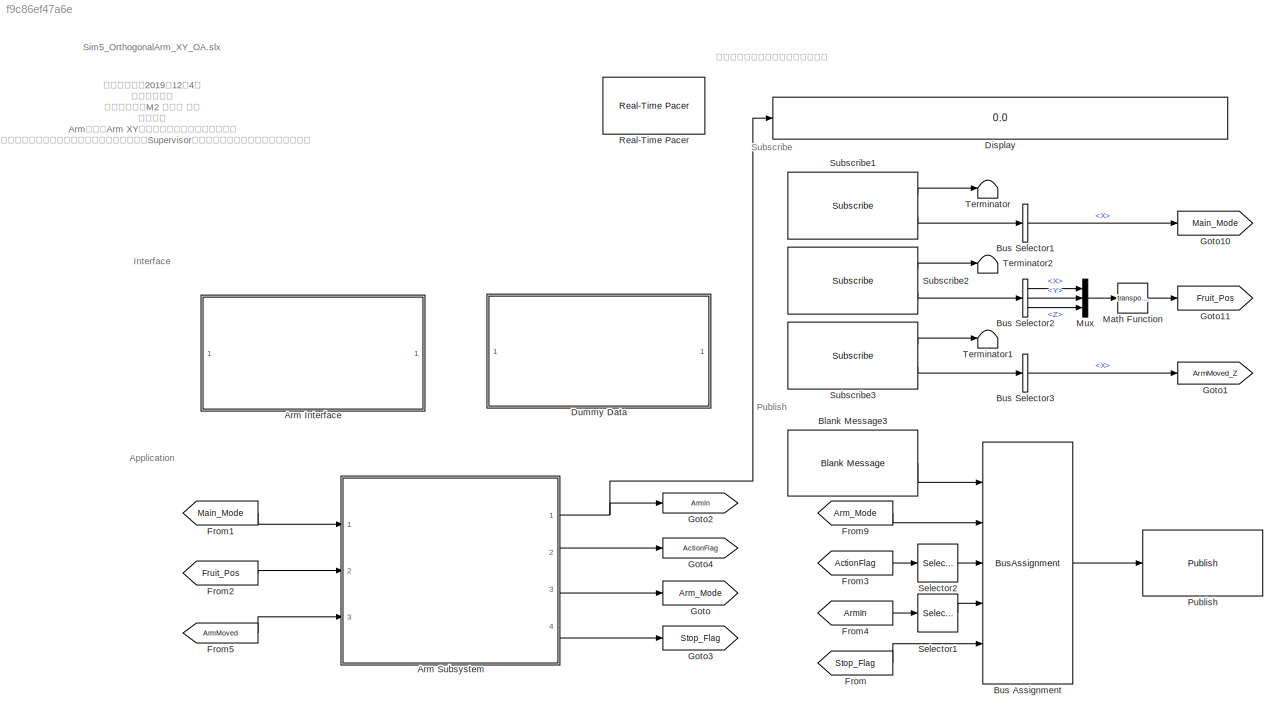
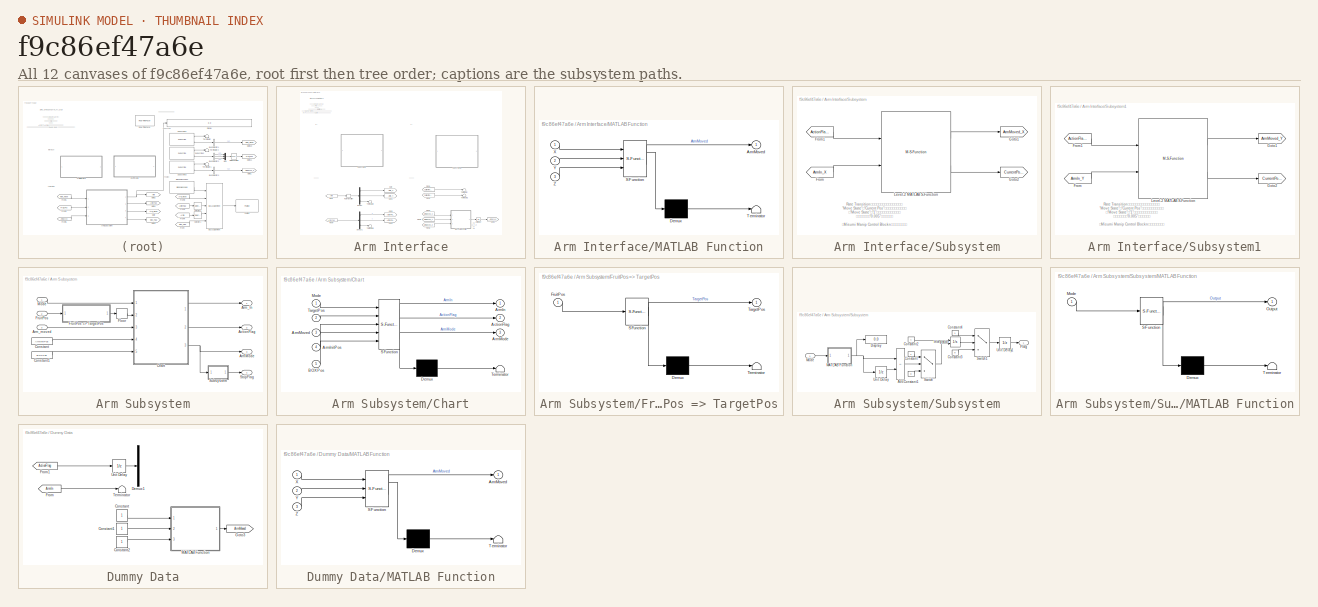
[diagram: thumbnail index - all 12 canvases of the model, root first then tree order]
MODEL slx_f9c86ef47a6e
KIND model
CONFIG AbsTol = auto
CONFIG EnableMultiTasking = off
CONFIG FixedStep = auto
CONFIG InitFcn = Sim5_Status = 0;\nset_param('Sim1_Supervisor_OA','SimulationCommand','update');\nGUI = evalin('base','GUI_handle');
CONFIG MaxStep = auto
CONFIG MinStep = auto
CONFIG RelTol = 1e-3
CONFIG SampleTimeConstraint = Unconstrained
CONFIG SolverName = VariableStepAuto
CONFIG StartTime = 0.0
CONFIG StopFcn = Sim5_Status = 1;\nset_param('Sim1_Supervisor_OA','SimulationCommand','update');\nrun('AutomoveData.m')
CONFIG StopTime = Inf
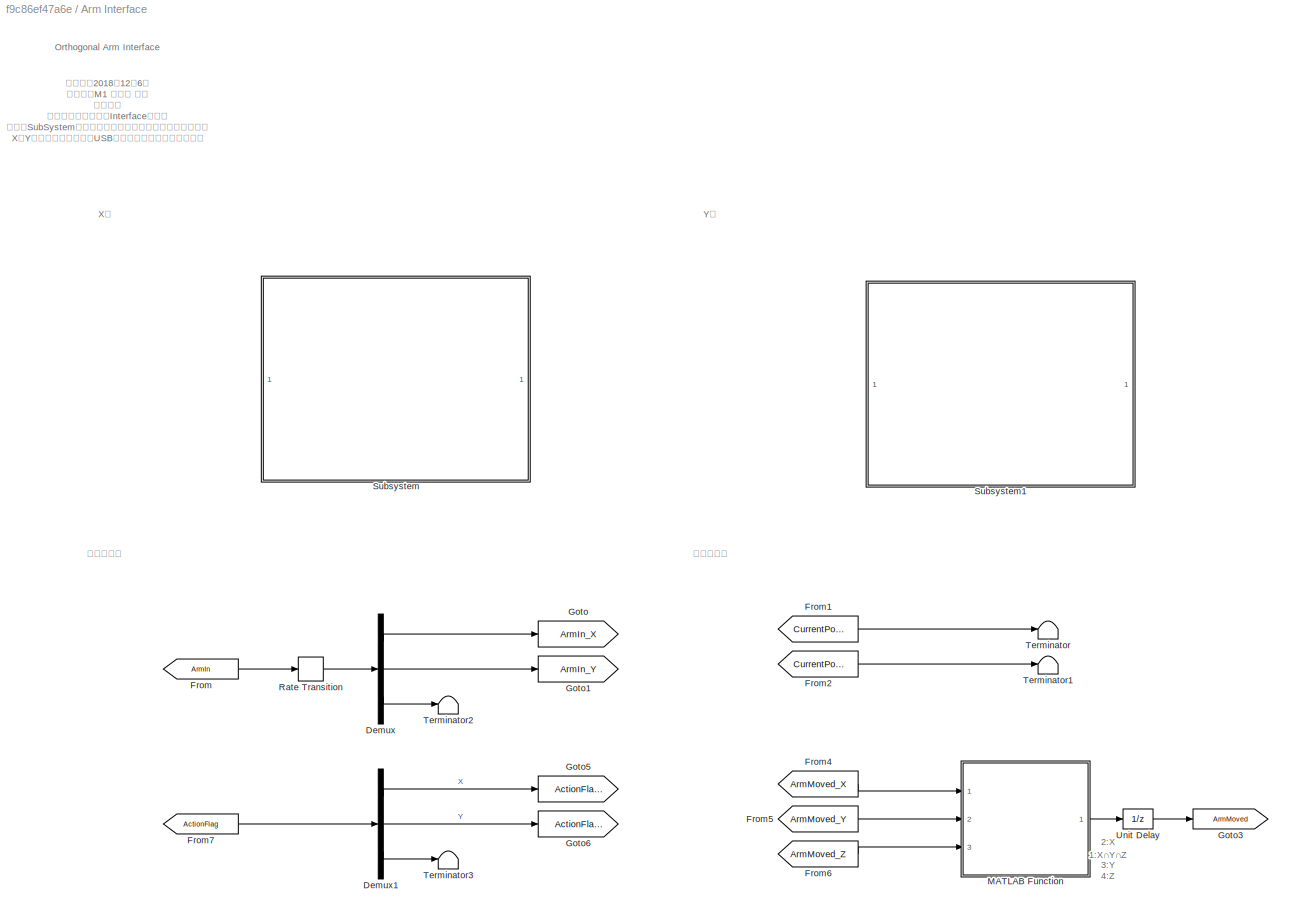
BLOCK [SubSystem] Arm Interface
  Ports = []
  RequestExecContextInheritance = off
BLOCK [Demux] Arm Interface/Demux
  Outputs = 3
  Ports = [1, 3]
BLOCK [Demux] Arm Interface/Demux1
  Outputs = 3
  Ports = [1, 3]
BLOCK [From] Arm Interface/From
  GotoTag = ArmIn
  TagVisibility = global
BLOCK [From] Arm Interface/From1
  GotoTag = CurrentPos_X
  TagVisibility = global
BLOCK [From] Arm Interface/From2
  GotoTag = CurrentPos_Y
  TagVisibility = global
BLOCK [From] Arm Interface/From4
  GotoTag = ArmMoved_X
  TagVisibility = global
BLOCK [From] Arm Interface/From5
  GotoTag = ArmMoved_Y
  TagVisibility = global
BLOCK [From] Arm Interface/From6
  GotoTag = ArmMoved_Z
  TagVisibility = global
BLOCK [From] Arm Interface/From7
  GotoTag = ActionFlag
  TagVisibility = global
BLOCK [Goto] Arm Interface/Goto
  GotoTag = ArmIn_X
  TagVisibility = global
BLOCK [Goto] Arm Interface/Goto1
  GotoTag = ArmIn_Y
  TagVisibility = global
BLOCK [Goto] Arm Interface/Goto3
  GotoTag = ArmMoved
  TagVisibility = global
BLOCK [Goto] Arm Interface/Goto5
  GotoTag = ActionFlag_X
  TagVisibility = global
BLOCK [Goto] Arm Interface/Goto6
  GotoTag = ActionFlag_Y
  TagVisibility = global
BLOCK [SubSystem] Arm Interface/MATLAB Function
  ErrorFcn = Stateflow.Translate.translate
  PermitHierarchicalResolution = ExplicitOnly
  Ports = [3, 1]
  RequestExecContextInheritance = off
  SFBlockType = MATLAB Function
  TreatAsAtomicUnit = on
BLOCK [Demux] Arm Interface/MATLAB Function/ Demux 
  Outputs = 1
  Ports = [1, 1]
BLOCK [S-Function] Arm Interface/MATLAB Function/ SFunction 
  EnableBusSupport = on
  FunctionName = sf_sfun
  PortCounts = [3 2]
  Ports = [3, 2]
  SFcnIsStateOwnerBlock = off
  SFunctionDeploymentMode = off
  Tag = Stateflow S-Function 1
BLOCK [Terminator] Arm Interface/MATLAB Function/ Terminator 
BLOCK [Outport] Arm Interface/MATLAB Function/ArmMoved
  VectorParamsAs1DForOutWhenUnconnected = off
BLOCK [Inport] Arm Interface/MATLAB Function/X
BLOCK [Inport] Arm Interface/MATLAB Function/Y
  Port = 2
BLOCK [Inport] Arm Interface/MATLAB Function/Z
  Port = 3
BLOCK [RateTransition] Arm Interface/Rate Transition
  OutPortSampleTime = 0.1
BLOCK [SubSystem] Arm Interface/Subsystem
  Ports = []
  RequestExecContextInheritance = off
BLOCK [From] Arm Interface/Subsystem/From
  GotoTag = ArmIn_X
  TagVisibility = global
BLOCK [From] Arm Interface/Subsystem/From1
  GotoTag = ActionFlag_X
  TagVisibility = global
BLOCK [Goto] Arm Interface/Subsystem/Goto1
  GotoTag = ArmMoved_X
  TagVisibility = global
BLOCK [Goto] Arm Interface/Subsystem/Goto2
  GotoTag = CurrentPos_X
  TagVisibility = global
BLOCK [M-S-Function] Arm Interface/Subsystem/Level-2 MATLAB S-Function
  FunctionName = l2_misumi_RSManip_ver4
  Parameters = comport, initPos, speed
  Ports = [2, 2]
BLOCK [SubSystem] Arm Interface/Subsystem1
  Ports = []
  RequestExecContextInheritance = off
BLOCK [From] Arm Interface/Subsystem1/From
  GotoTag = ArmIn_Y
  TagVisibility = global
BLOCK [From] Arm Interface/Subsystem1/From1
  GotoTag = ActionFlag_Y
  TagVisibility = global
BLOCK [Goto] Arm Interface/Subsystem1/Goto1
  GotoTag = ArmMoved_Y
  TagVisibility = global
BLOCK [Goto] Arm Interface/Subsystem1/Goto2
  GotoTag = CurrentPos_Y
  TagVisibility = global
BLOCK [M-S-Function] Arm Interface/Subsystem1/Level-2 MATLAB S-Function
  FunctionName = l2_misumi_RSManip_ver4
  Parameters = comport, initPos, speed
  Ports = [2, 2]
BLOCK [Terminator] Arm Interface/Terminator
BLOCK [Terminator] Arm Interface/Terminator1
BLOCK [Terminator] Arm Interface/Terminator2
BLOCK [Terminator] Arm Interface/Terminator3
BLOCK [UnitDelay] Arm Interface/Unit Delay
  HasFrameUpgradeWarning = on
  SampleTime = -1
BLOCK [SubSystem] Arm Subsystem
  Ports = [3, 4]
  RequestExecContextInheritance = off
  TreatAsAtomicUnit = on
BLOCK [Outport] Arm Subsystem/ActionFlag
  Port = 2
  VectorParamsAs1DForOutWhenUnconnected = off
BLOCK [Outport] Arm Subsystem/ArmMode
  InitialOutput = 0
  Port = 3
  PortDimensions = 1
  VectorParamsAs1DForOutWhenUnconnected = off
BLOCK [Outport] Arm Subsystem/Arm_In
  InitialOutput = armInitPos
  VectorParamsAs1DForOutWhenUnconnected = off
BLOCK [Inport] Arm Subsystem/Arm_moved
  Port = 3
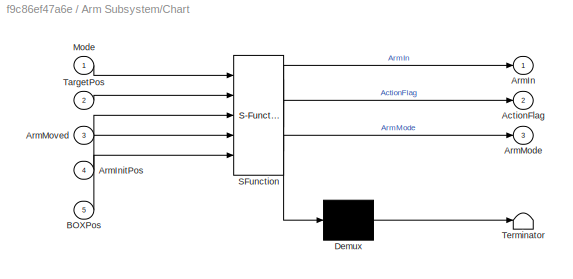
BLOCK [SubSystem] Arm Subsystem/Chart
  ErrorFcn = Stateflow.Translate.translate
  PermitHierarchicalResolution = ExplicitOnly
  Ports = [5, 3]
  RequestExecContextInheritance = off
  SFBlockType = Chart
  TreatAsAtomicUnit = on
BLOCK [Demux] Arm Subsystem/Chart/ Demux 
  Outputs = 1
  Ports = [1, 1]
BLOCK [S-Function] Arm Subsystem/Chart/ SFunction 
  EnableBusSupport = on
  FunctionName = sf_sfun
  PortCounts = [5 4]
  Ports = [5, 4]
  SFcnIsStateOwnerBlock = off
  SFunctionDeploymentMode = off
  Tag = Stateflow S-Function 15
BLOCK [Terminator] Arm Subsystem/Chart/ Terminator 
BLOCK [Outport] Arm Subsystem/Chart/ActionFlag
  Port = 2
  VectorParamsAs1DForOutWhenUnconnected = off
BLOCK [Outport] Arm Subsystem/Chart/ArmIn
  VectorParamsAs1DForOutWhenUnconnected = off
BLOCK [Inport] Arm Subsystem/Chart/ArmInitPos
  Port = 4
BLOCK [Outport] Arm Subsystem/Chart/ArmMode
  Port = 3
  VectorParamsAs1DForOutWhenUnconnected = off
BLOCK [Inport] Arm Subsystem/Chart/ArmMoved
  Port = 3
BLOCK [Inport] Arm Subsystem/Chart/BOXPos
  Port = 5
BLOCK [Inport] Arm Subsystem/Chart/Mode
BLOCK [Inport] Arm Subsystem/Chart/TargetPos
  Port = 2
BLOCK [Constant] Arm Subsystem/Constant
  Value = ArmInitPos
  VectorParams1D = off
BLOCK [Constant] Arm Subsystem/Constant1
  Value = BOXPos
  VectorParams1D = off
BLOCK [Rounding] Arm Subsystem/Floor
BLOCK [Inport] Arm Subsystem/FruitPos
  Port = 2
BLOCK [SubSystem] Arm Subsystem/FruitPos => TargetPos
  ErrorFcn = Stateflow.Translate.translate
  PermitHierarchicalResolution = ExplicitOnly
  Ports = [1, 1]
  RequestExecContextInheritance = off
  SFBlockType = MATLAB Function
  TreatAsAtomicUnit = on
BLOCK [Demux] Arm Subsystem/FruitPos => TargetPos/ Demux 
  Outputs = 1
  Ports = [1, 1]
BLOCK [S-Function] Arm Subsystem/FruitPos => TargetPos/ SFunction 
  EnableBusSupport = on
  FunctionName = sf_sfun
  PortCounts = [1 2]
  Ports = [1, 2]
  SFcnIsStateOwnerBlock = off
  SFunctionDeploymentMode = off
  Tag = Stateflow S-Function 2
BLOCK [Terminator] Arm Subsystem/FruitPos => TargetPos/ Terminator 
BLOCK [Inport] Arm Subsystem/FruitPos => TargetPos/FruitPos
BLOCK [Outport] Arm Subsystem/FruitPos => TargetPos/TargetPos
  VectorParamsAs1DForOutWhenUnconnected = off
BLOCK [Inport] Arm Subsystem/Mode
  PortDimensions = 1
BLOCK [Outport] Arm Subsystem/StopFlag
  InitialOutput = 0
  Port = 4
  PortDimensions = 1
  VectorParamsAs1DForOutWhenUnconnected = off
BLOCK [SubSystem] Arm Subsystem/Subsystem
  Ports = [1, 1]
  RequestExecContextInheritance = off
BLOCK [Sum] Arm Subsystem/Subsystem/Add
  IconShape = rectangular
  Inputs = +-
  Ports = [2, 1]
BLOCK [Constant] Arm Subsystem/Subsystem/Constant
BLOCK [Constant] Arm Subsystem/Subsystem/Constant1
  Value = 0
BLOCK [Constant] Arm Subsystem/Subsystem/Constant2
BLOCK [Constant] Arm Subsystem/Subsystem/Constant3
  Value = 0
BLOCK [Constant] Arm Subsystem/Subsystem/Constant4
BLOCK [Display] Arm Subsystem/Subsystem/Display
  Decimation = 1
  Ports = [1]
BLOCK [Outport] Arm Subsystem/Subsystem/Flag
  VectorParamsAs1DForOutWhenUnconnected = off
BLOCK [Integrator] Arm Subsystem/Subsystem/Integrator
  ExternalReset = level
  Ports = [2, 1]
BLOCK [SubSystem] Arm Subsystem/Subsystem/MATLAB Function
  ErrorFcn = Stateflow.Translate.translate
  PermitHierarchicalResolution = ExplicitOnly
  Ports = [1, 1]
  RequestExecContextInheritance = off
  SFBlockType = MATLAB Function
  TreatAsAtomicUnit = on
BLOCK [Demux] Arm Subsystem/Subsystem/MATLAB Function/ Demux 
  Outputs = 1
  Ports = [1, 1]
BLOCK [S-Function] Arm Subsystem/Subsystem/MATLAB Function/ SFunction 
  EnableBusSupport = on
  FunctionName = sf_sfun
  PortCounts = [1 2]
  Ports = [1, 2]
  SFcnIsStateOwnerBlock = off
  SFunctionDeploymentMode = off
  Tag = Stateflow S-Function 4
BLOCK [Terminator] Arm Subsystem/Subsystem/MATLAB Function/ Terminator 
BLOCK [Inport] Arm Subsystem/Subsystem/MATLAB Function/Mode
BLOCK [Outport] Arm Subsystem/Subsystem/MATLAB Function/Output
  VectorParamsAs1DForOutWhenUnconnected = off
BLOCK [Inport] Arm Subsystem/Subsystem/Mode
BLOCK [Switch] Arm Subsystem/Subsystem/Switch
  Criteria = u2 ~= 0
  InputSameDT = off
  SaturateOnIntegerOverflow = off
BLOCK [Switch] Arm Subsystem/Subsystem/Switch1
  Criteria = u2 > Threshold
  InputSameDT = off
  SaturateOnIntegerOverflow = off
  Threshold = 5
BLOCK [UnitDelay] Arm Subsystem/Subsystem/Unit Delay
  HasFrameUpgradeWarning = on
  SampleTime = -1
BLOCK [UnitDelay] Arm Subsystem/Subsystem/Unit Delay1
  HasFrameUpgradeWarning = on
  SampleTime = -1
BLOCK [Reference] Blank Message3  REF=robotlib/Blank Message
  Ports = [0, 1]
  SourceBlock = robotlib/Blank Message
  SourceProductBaseCode = RR
  SourceType = ROS Blank Message
BLOCK [BusAssignment] Bus Assignment
  AssignedSignals = Twist.Linear.X,Twist.Linear.Y,Twist.Linear.Z,Twist.Angular.X
  Ports = [5, 1]
BLOCK [BusSelector] Bus Selector1
  OutputSignals = Twist.Linear.X
  Ports = [1, 1]
BLOCK [BusSelector] Bus Selector2
  OutputSignals = Twist.Linear.X,Twist.Linear.Y,Twist.Linear.Z
  Ports = [1, 3]
BLOCK [BusSelector] Bus Selector3
  OutputSignals = Twist.Linear.X
  Ports = [1, 1]
BLOCK [Display] Display
  Commented = on
  Decimation = 1
  Ports = [1]
BLOCK [SubSystem] Dummy Data
  Commented = on
  Ports = []
  RequestExecContextInheritance = off
BLOCK [Constant] Dummy Data/Constant
BLOCK [Constant] Dummy Data/Constant1
BLOCK [Constant] Dummy Data/Constant2
BLOCK [Demux] Dummy Data/Demux1
  Commented = on
  Outputs = 3
  Ports = [1, 3]
BLOCK [From] Dummy Data/From
  Commented = on
  GotoTag = ArmIn
  TagVisibility = global
BLOCK [From] Dummy Data/From1
  Commented = on
  GotoTag = ActionFlag
  TagVisibility = global
BLOCK [Goto] Dummy Data/Goto3
  GotoTag = ArmMoved
  TagVisibility = global
BLOCK [SubSystem] Dummy Data/MATLAB Function
  ErrorFcn = Stateflow.Translate.translate
  PermitHierarchicalResolution = ExplicitOnly
  Ports = [3, 1]
  RequestExecContextInheritance = off
  SFBlockType = MATLAB Function
  TreatAsAtomicUnit = on
BLOCK [Demux] Dummy Data/MATLAB Function/ Demux 
  Outputs = 1
  Ports = [1, 1]
BLOCK [S-Function] Dummy Data/MATLAB Function/ SFunction 
  EnableBusSupport = on
  FunctionName = sf_sfun
  PortCounts = [3 2]
  Ports = [3, 2]
  SFcnIsStateOwnerBlock = off
  SFunctionDeploymentMode = off
  Tag = Stateflow S-Function 3
BLOCK [Terminator] Dummy Data/MATLAB Function/ Terminator 
BLOCK [Outport] Dummy Data/MATLAB Function/ArmMoved
  VectorParamsAs1DForOutWhenUnconnected = off
BLOCK [Inport] Dummy Data/MATLAB Function/X
BLOCK [Inport] Dummy Data/MATLAB Function/Y
  Port = 2
BLOCK [Inport] Dummy Data/MATLAB Function/Z
  Port = 3
BLOCK [Terminator] Dummy Data/Terminator
  Commented = on
BLOCK [UnitDelay] Dummy Data/Unit Delay
  Commented = on
  HasFrameUpgradeWarning = on
  SampleTime = -1
BLOCK [From] From
  GotoTag = Stop_Flag
  TagVisibility = global
BLOCK [From] From1
  GotoTag = Main_Mode
  TagVisibility = global
BLOCK [From] From2
  GotoTag = Fruit_Pos
  TagVisibility = global
BLOCK [From] From3
  GotoTag = ActionFlag
  TagVisibility = global
BLOCK [From] From4
  GotoTag = ArmIn
  TagVisibility = global
BLOCK [From] From5
  GotoTag = ArmMoved
  TagVisibility = global
BLOCK [From] From9
  GotoTag = Arm_Mode
  TagVisibility = global
BLOCK [Goto] Goto
  GotoTag = Arm_Mode
  TagVisibility = global
BLOCK [Goto] Goto1
  GotoTag = ArmMoved_Z
  TagVisibility = global
BLOCK [Goto] Goto10
  GotoTag = Main_Mode
  TagVisibility = global
BLOCK [Goto] Goto11
  GotoTag = Fruit_Pos
  TagVisibility = global
BLOCK [Goto] Goto2
  GotoTag = ArmIn
  TagVisibility = global
BLOCK [Goto] Goto3
  GotoTag = Stop_Flag
  TagVisibility = global
BLOCK [Goto] Goto4
  GotoTag = ActionFlag
  TagVisibility = global
BLOCK [Math] Math Function
  Operator = transpose
  Ports = [1, 1]
  SignedPower = on
BLOCK [Mux] Mux
  DisplayOption = bar
  Inputs = 3
  Ports = [3, 1]
BLOCK [Reference] Publish  REF=robotlib/Publish
  Ports = [1]
  SourceBlock = robotlib/Publish
  SourceProductBaseCode = RR
  SourceType = ROS Publish
BLOCK [Reference] Real-Time Pacer  REF=realtime_pacer_lib/Real-Time Pacer
  Ports = []
  SourceBlock = realtime_pacer_lib/Real-Time Pacer
  SourceProductName = Real-Time Pacer
  SourceType = RealTime_Pacer
BLOCK [Selector] Selector1
  IndexOptions = Index vector (dialog)
  Indices = 3
  InputPortWidth = 3
  OutputSizes = 1
  Ports = [1, 1]
BLOCK [Selector] Selector2
  IndexOptions = Index vector (dialog)
  Indices = 3
  InputPortWidth = 3
  OutputSizes = 1
  Ports = [1, 1]
BLOCK [Reference] Subscribe1  REF=robotlib/Subscribe
  Ports = [0, 2]
  SourceBlock = robotlib/Subscribe
  SourceProductBaseCode = RR
  SourceType = ROS Subscribe
BLOCK [Reference] Subscribe2  REF=robotlib/Subscribe
  Ports = [0, 2]
  SourceBlock = robotlib/Subscribe
  SourceProductBaseCode = RR
  SourceType = ROS Subscribe
BLOCK [Reference] Subscribe3  REF=robotlib/Subscribe
  Ports = [0, 2]
  SourceBlock = robotlib/Subscribe
  SourceProductBaseCode = RR
  SourceType = ROS Subscribe
BLOCK [Terminator] Terminator
BLOCK [Terminator] Terminator1
BLOCK [Terminator] Terminator2
ANNOTATION (root): 初回作成日：2019年12月4日 最終更新日： 最終更新者：M2 奈須野 智弘 注意点： Arm（直交Arm XY軸）の制御を行うモデルです． 実働時にはクライアントとして立ち上がるため，Supervisorと同じワークスペースを適用します． Setting Parameter： ArmInitPos, BOXPos
ANNOTATION (root): ※直交アーム用のプログラムです！
ANNOTATION (root): Application
ANNOTATION (root): Interface
ANNOTATION (root): Publish
ANNOTATION (root): Sim5_OrthogonalArm_XY_OA.slx
ANNOTATION (root): Subscribe
ANNOTATION Arm Interface: 1:X∩Y∩Z 2:X 3:Y 4:Z
ANNOTATION Arm Interface: 作成日：2018年12月6日 作成者：M1 奈須野 智弘 注意点： 直交アーム動作用のInterfaceです． 各軸でSubSystemを組み上げ，動作するようにしています． X，Y軸はコントローラをUSBで接続する必要があります．
ANNOTATION Arm Interface: Orthogonal Arm Interface
ANNOTATION Arm Interface: X軸
ANNOTATION Arm Interface: Y軸
ANNOTATION Arm Interface: 入力データ
ANNOTATION Arm Interface: 出力データ
ANNOTATION Arm Interface/Subsystem: Rate Transitionブロックのサンプル時間に応じて、 "Move State"、"Current Pos"の応答速度が変化する。 （"Move State"が"1"で目標位置に移動完了。） サンプル時間を"0.005"にしている。 ※Misumi Manip Control Blocknのサンプル時間は 入力の時間に依存する。
ANNOTATION Arm Interface/Subsystem1: Rate Transitionブロックのサンプル時間に応じて、 "Move State"、"Current Pos"の応答速度が変化する。 （"Move State"が"1"で目標位置に移動完了。） サンプル時間を"0.005"にしている。 ※Misumi Manip Control Blocknのサンプル時間は 入力の時間に依存する。
LINE Arm Interface/Demux1:1 -> Arm Interface/Goto5:1
LINE Arm Interface/Demux1:2 -> Arm Interface/Goto6:1
LINE Arm Interface/Demux1:3 -> Arm Interface/Terminator3:1
LINE Arm Interface/Demux:1 -> Arm Interface/Goto:1
LINE Arm Interface/Demux:2 -> Arm Interface/Goto1:1
LINE Arm Interface/Demux:3 -> Arm Interface/Terminator2:1
LINE Arm Interface/From1:1 -> Arm Interface/Terminator:1
LINE Arm Interface/From2:1 -> Arm Interface/Terminator1:1
LINE Arm Interface/From4:1 -> Arm Interface/MATLAB Function:1
LINE Arm Interface/From5:1 -> Arm Interface/MATLAB Function:2
LINE Arm Interface/From6:1 -> Arm Interface/MATLAB Function:3
LINE Arm Interface/From7:1 -> Arm Interface/Demux1:1
LINE Arm Interface/From:1 -> Arm Interface/Rate Transition:1
LINE Arm Interface/MATLAB Function:1 -> Arm Interface/Unit Delay:1
LINE Arm Interface/Rate Transition:1 -> Arm Interface/Demux:1
LINE Arm Interface/Subsystem/From1:1 -> Arm Interface/Subsystem/Level-2 MATLAB S-Function:1
LINE Arm Interface/Subsystem/From:1 -> Arm Interface/Subsystem/Level-2 MATLAB S-Function:2
LINE Arm Interface/Subsystem/Level-2 MATLAB S-Function:1 -> Arm Interface/Subsystem/Goto1:1
LINE Arm Interface/Subsystem/Level-2 MATLAB S-Function:2 -> Arm Interface/Subsystem/Goto2:1
LINE Arm Interface/Subsystem1/From1:1 -> Arm Interface/Subsystem1/Level-2 MATLAB S-Function:1
LINE Arm Interface/Subsystem1/From:1 -> Arm Interface/Subsystem1/Level-2 MATLAB S-Function:2
LINE Arm Interface/Subsystem1/Level-2 MATLAB S-Function:1 -> Arm Interface/Subsystem1/Goto1:1
LINE Arm Interface/Subsystem1/Level-2 MATLAB S-Function:2 -> Arm Interface/Subsystem1/Goto2:1
LINE Arm Interface/Unit Delay:1 -> Arm Interface/Goto3:1
LINE Arm Subsystem/Arm_moved:1 -> Arm Subsystem/Chart:3
LINE Arm Subsystem/Chart:1 -> Arm Subsystem/Arm_In:1
LINE Arm Subsystem/Chart:2 -> Arm Subsystem/ActionFlag:1
NET Arm Subsystem/Chart:3 -> Arm Subsystem/ArmMode:1, Arm Subsystem/Subsystem:1
LINE Arm Subsystem/Constant1:1 -> Arm Subsystem/Chart:5
LINE Arm Subsystem/Constant:1 -> Arm Subsystem/Chart:4
LINE Arm Subsystem/Floor:1 -> Arm Subsystem/Chart:2
LINE Arm Subsystem/FruitPos => TargetPos:1 -> Arm Subsystem/Floor:1
LINE Arm Subsystem/FruitPos:1 -> Arm Subsystem/FruitPos => TargetPos:1
LINE Arm Subsystem/Mode:1 -> Arm Subsystem/Chart:1
LINE Arm Subsystem/Subsystem/Add:1 -> Arm Subsystem/Subsystem/Switch:2
LINE Arm Subsystem/Subsystem/Constant1:1 -> Arm Subsystem/Subsystem/Switch:3
LINE Arm Subsystem/Subsystem/Constant2:1 -> Arm Subsystem/Subsystem/Integrator:1
LINE Arm Subsystem/Subsystem/Constant3:1 -> Arm Subsystem/Subsystem/Switch1:3
LINE Arm Subsystem/Subsystem/Constant4:1 -> Arm Subsystem/Subsystem/Switch1:1
LINE Arm Subsystem/Subsystem/Constant:1 -> Arm Subsystem/Subsystem/Switch:1
LINE Arm Subsystem/Subsystem/Integrator:1 -> Arm Subsystem/Subsystem/Switch1:2
NET Arm Subsystem/Subsystem/MATLAB Function:1 -> Arm Subsystem/Subsystem/Add:1, Arm Subsystem/Subsystem/Display:1, Arm Subsystem/Subsystem/Unit Delay:1
LINE Arm Subsystem/Subsystem/Mode:1 -> Arm Subsystem/Subsystem/MATLAB Function:1
LINE Arm Subsystem/Subsystem/Switch1:1 -> Arm Subsystem/Subsystem/Unit Delay1:1
LINE Arm Subsystem/Subsystem/Switch:1 -> Arm Subsystem/Subsystem/Integrator:2
LINE Arm Subsystem/Subsystem/Unit Delay1:1 -> Arm Subsystem/Subsystem/Flag:1
LINE Arm Subsystem/Subsystem/Unit Delay:1 -> Arm Subsystem/Subsystem/Add:2
LINE Arm Subsystem/Subsystem:1 -> Arm Subsystem/StopFlag:1
NET Arm Subsystem:1 -> Display:1, Goto2:1
LINE Arm Subsystem:2 -> Goto4:1
LINE Arm Subsystem:3 -> Goto:1
LINE Arm Subsystem:4 -> Goto3:1
LINE Blank Message3:1 -> Bus Assignment:1
LINE Bus Assignment:1 -> Publish:1
LINE Bus Selector1:1 -> Goto10:1
LINE Bus Selector2:1 -> Mux:1
LINE Bus Selector2:2 -> Mux:2
LINE Bus Selector2:3 -> Mux:3
LINE Bus Selector3:1 -> Goto1:1
LINE Dummy Data/Constant1:1 -> Dummy Data/MATLAB Function:2
LINE Dummy Data/Constant2:1 -> Dummy Data/MATLAB Function:3
LINE Dummy Data/Constant:1 -> Dummy Data/MATLAB Function:1
LINE Dummy Data/From1:1 -> Dummy Data/Unit Delay:1
LINE Dummy Data/From:1 -> Dummy Data/Terminator:1
LINE Dummy Data/MATLAB Function:1 -> Dummy Data/Goto3:1
LINE Dummy Data/Unit Delay:1 -> Dummy Data/Demux1:1
LINE From1:1 -> Arm Subsystem:1
LINE From2:1 -> Arm Subsystem:2
LINE From3:1 -> Selector2:1
LINE From4:1 -> Selector1:1
LINE From5:1 -> Arm Subsystem:3
LINE From9:1 -> Bus Assignment:2
LINE From:1 -> Bus Assignment:5
LINE Math Function:1 -> Goto11:1
LINE Mux:1 -> Math Function:1
LINE Selector1:1 -> Bus Assignment:4
LINE Selector2:1 -> Bus Assignment:3
LINE Subscribe1:1 -> Terminator:1
LINE Subscribe1:2 -> Bus Selector1:1
LINE Subscribe2:1 -> Terminator2:1
LINE Subscribe2:2 -> Bus Selector2:1
LINE Subscribe3:1 -> Terminator1:1
LINE Subscribe3:2 -> Bus Selector3:1
note: NET lines group one-source signal fan-out (src -> all destinations, sorted); 1:1 wires keep LINE
CHART Arm Interface/MATLAB Function states=1 transitions=1
  STATE_LABEL 'eML_blk_kernel()'
  STATE_LABEL 'SCRIPT:\nfunction ArmMoved = fcn(X,Y,Z)\n\n\n\nif X == 1 && Y == 1 && Z == 1\n    ArmMoved_XYZ = 1;\nelse\n    ArmMoved_XYZ = 0;\nend\n\nArmMoved = [ArmMoved_XYZ, X, Y, Z];'
CHART Arm Subsystem/FruitPos => TargetPos states=1 transitions=1
  STATE_LABEL 'eML_blk_kernel()'
  STATE_LABEL 'SCRIPT:\nfunction TargetPos = fcn(FruitPos)\n\nTargetPos = FruitPos;\n\nif FruitPos(1) > 200\n    TargetPos(1) = 0;\nelseif FruitPos(1) < 0\n    TargetPos(1) = 200;\nelse\n    TargetPos(1) = 200 - FruitPos(1);\nend\nif FruitPos(2) > 200\n    TargetPos(2) = 200;\nelseif FruitPos(2) < 0\n    TargetPos(2) = 0;\nend\nif FruitPos(3) > 470\n    TargetPos(3) = 470;\nelseif FruitPos(3) < 60\n    TargetPos(3) = 60;\nend\n    \n ...<+9ch>'
CHART Dummy Data/MATLAB Function states=1 transitions=1
  STATE_LABEL 'eML_blk_kernel()'
  STATE_LABEL 'SCRIPT:\nfunction ArmMoved = fcn(X,Y,Z)\n\n\n\nif X == 1 && Y == 1 && Z == 1\n    ArmMoved_XYZ = 1;\nelse\n    ArmMoved_XYZ = 0;\nend\n\nArmMoved = [ArmMoved_XYZ, X, Y, Z];'
CHART Arm Subsystem/Subsystem/MATLAB Function states=1 transitions=1
  STATE_LABEL 'eML_blk_kernel()'
  STATE_LABEL 'SCRIPT:\nfunction Output = fcn(Mode)\n\nif Mode == 1 || Mode == 4 || Mode == 11 || Mode == 12 || Mode == 21 || Mode == 22 ...\n        || Mode == 41 || Mode == 42\n    Output = Mode;\nelse\n    Output = randi(100);\nend'
CHART Arm Subsystem/Chart states=20 transitions=22
  STATE_LABEL 'Mode0_Z2/\n% Move Init. Pos. Z\nentry:\nActionFlag = [0, 0, 1];\nArmIn = ArmInitPos;'
  STATE_LABEL 'Wait01/\n% Wait for input\nentry:\nArmMode = 100;\nActionFlag = [0,0,0];'
  STATE_LABEL 'Arm_Move/'
  STATE_LABEL 'Return_InitPositionX/\n% x座標アームを原点移動\nentry:\nArmMode = 21;'
  STATE_LABEL 'Mode0_X/\n% Move Init. Pos. X\nentry:\nArmMode = 21;\nActionFlag = [1,0,0];\nArmIn = ArmInitPos;'
  STATE_LABEL 'Finished_X/\nentry:\nArmMode = 22;\nActionFlag = [0,0,0];'
  STATE_LABEL 'after(0.5,sec)[ArmMoved(2) == 1]'
  STATE_LABEL 'Arm_MoveTarget1/\n%TargetPosの座標にアーム移動\nentry:\nArmMode = 1;\nNeedTime = abs(ArmInitPos(3)-TargetPos(3))/100;'
  STATE_LABEL 'Mode1/\n% Move Y\nentry:\nArmMode = 1;\nActionFlag = [0,1,0];\nArmIn = TargetPos;'
  STATE_LABEL 'Mode2/\n% Move Z\nentry:\nArmMode = 2;\nActionFlag = [0,0,1];\nArmIn = TargetPos;'
  STATE_LABEL 'Finished_Z/\nentry:ArmMode = 3;\nActionFlag = [0,0,0];'
  STATE_LABEL 'Mode3/\n% Move X\nentry:\nArmMode = 4;\nActionFlag = [1,0,0];\nArmIn = TargetPos;'
  STATE_LABEL 'after(0.5,sec)[ArmMoved(3) == 1]'
  STATE_LABEL 'after(5,sec)'
  STATE_LABEL '[Mode == 42]'
  STATE_LABEL 'Return_InitPositionZY/\n% z,y座標アームを原点移動\nentry:\nArmMode = 31;\nNeedTime = abs(ArmInitPos(3)-TargetPos(3))/100;'
  STATE_LABEL 'Mode0_Z/\n% Move Init. Pos. Z\nentry:\nArmMode = 31;\nActionFlag = [0,0,1];\nArmIn = ArmInitPos;'
  STATE_LABEL 'Mode0_Y/\n% Move Init. Pos. Y\nentry:\nArmMode = 32;\nActionFlag = [0,1,0]\nArmIn = ArmInitPos;'
  STATE_LABEL 'Finished_X/\nentry:\nArmMode = 33;\nActionFlag = [0,0,0];'
  STATE_LABEL 'after(5,sec)'
  STATE_LABEL 'after(2,sec)[ArmMoved(3) == 1]'
  STATE_LABEL 'Wait5/\n% Wait\nentry:\nArmMode = 10;\nActionFlag = [0,0,0];'
  STATE_LABEL '[Mode == 51 || Mode == 47]'
  STATE_LABEL '[Mode == 62 || Mode == 52]'
  STATE_LABEL 'after(0.5,sec)[ArmMoved(2) == 1]'
  STATE_LABEL 'Return_InitPositionX/\n% x座標アームを原点移動\nentry:\nArmMode = 21;'
  STATE_LABEL 'Mode0_X/\n% Move Init. Pos. X\nentry:\nArmMode = 21;\nActionFlag = [1,0,0];\nArmIn = ArmInitPos;'
  STATE_LABEL 'Finished_X/\nentry:\nArmMode = 22;\nActionFlag = [0,0,0];'
  STATE_LABEL 'after(0.5,sec)[ArmMoved(2) == 1]'
  STATE_LABEL 'Mode0_X/\n% Move Init. Pos. X\nentry:\nArmMode = 21;\nActionFlag = [1,0,0];\nArmIn = ArmInitPos;'
  STATE_LABEL 'Finished_X/\nentry:\nArmMode = 22;\nActionFlag = [0,0,0];'
  STATE_LABEL 'Arm_MoveTarget1/\n%TargetPosの座標にアーム移動\nentry:\nArmMode = 1;\nNeedTime = abs(ArmInitPos(3)-TargetPos(3))/100;'
  STATE_LABEL 'Mode1/\n% Move Y\nentry:\nArmMode = 1;\nActionFlag = [0,1,0];\nArmIn = TargetPos;'
  STATE_LABEL 'Mode2/\n% Move Z\nentry:\nArmMode = 2;\nActionFlag = [0,0,1];\nArmIn = TargetPos;'
  STATE_LABEL 'Finished_Z/\nentry:ArmMode = 3;\nActionFlag = [0,0,0];'
  STATE_LABEL 'Mode3/\n% Move X\nentry:\nArmMode = 4;\nActionFlag = [1,0,0];\nArmIn = TargetPos;'
  STATE_LABEL 'after(0.5,sec)[ArmMoved(3) == 1]'
  STATE_LABEL 'after(5,sec)'
  STATE_LABEL '[Mode == 42]'
  STATE_LABEL 'Mode1/\n% Move Y\nentry:\nArmMode = 1;\nActionFlag = [0,1,0];\nArmIn = TargetPos;'
CHART  states=0 transitions=0
CHART  states=0 transitions=0
CHART  states=0 transitions=0
CHART  states=0 transitions=0
CHART  states=0 transitions=0
